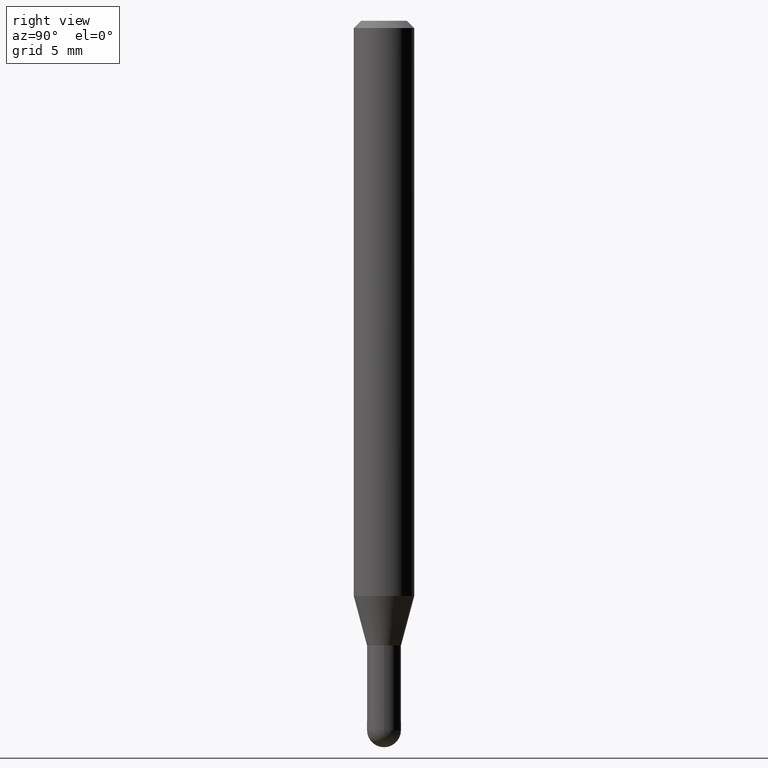
[diagram: clean part render]
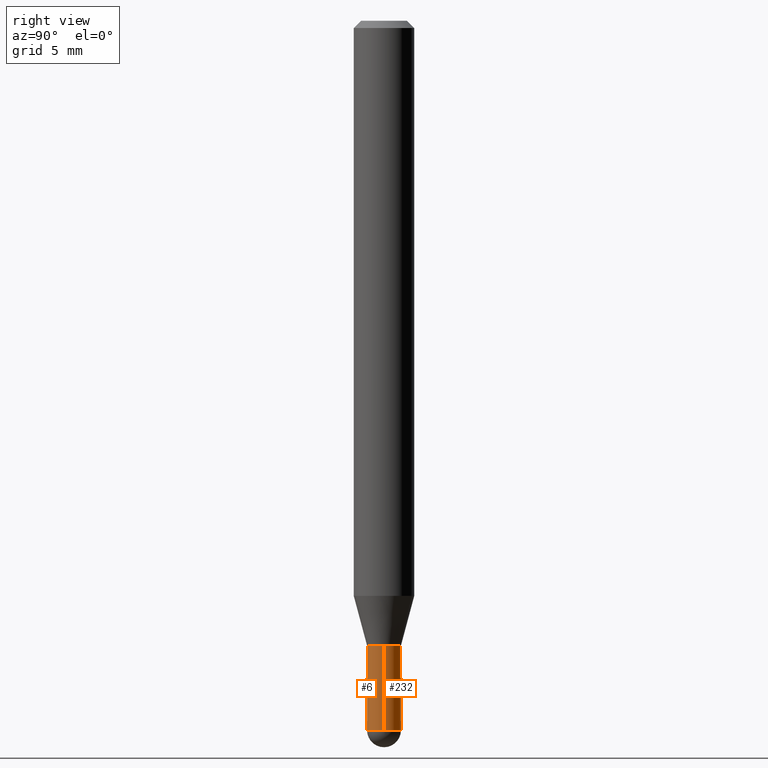
[diagram: same view with one multi-face feature highlighted, each face labeled with its STEP entity id]
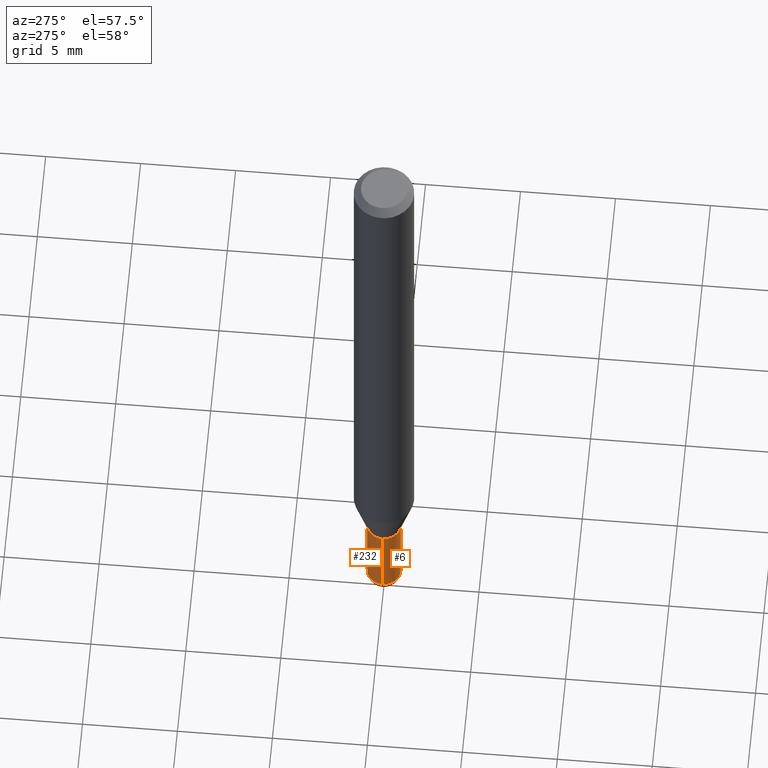
[diagram: same view with one multi-face feature highlighted, each face labeled with its STEP entity id]
A machine part, right view. The highlighted faces form ONE feature: a constant-radius fillet chain: 2 tangent blend faces with common blend radius 0.889 mm. The faces share edges in the B-rep.
A second angle (auxiliary view) of the same feature is appended — it is thin or edge-on in the first view.
Their STEP definitions:
[1] entity #6 (Cylinder):
#6 = ADVANCED_FACE ( 'NONE', ( #47 ), #305, .T. ) ;
#12 = EDGE_LOOP ( 'NONE', ( #110, #325, #220, #182, #302 ) ) ;
#26 = AXIS2_PLACEMENT_3D ( 'NONE', #471, #217, #377 ) ;
#28 = CARTESIAN_POINT ( 'NONE',  ( 0.03500000000000000333, -4.748414620826678245E-15, -1.290000000000000258 ) ) ;
#37 = CARTESIAN_POINT ( 'NONE',  ( 3.582611801061224486E-29, -5.115020161405207405E-15, -1.464999999999999858 ) ) ;
#47 = FACE_OUTER_BOUND ( 'NONE', #12, .T. ) ;
#58 = DIRECTION ( 'NONE',  ( -2.445468806185136597E-29, 3.491481338843145583E-15, 1.000000000000000000 ) ) ;
#59 = AXIS2_PLACEMENT_3D ( 'NONE', #37, #260, #230 ) ;
#65 = CARTESIAN_POINT ( 'NONE',  ( -0.03500000000000000333, -4.560825586740397161E-15, -1.464999999999999858 ) ) ;
#88 = VECTOR ( 'NONE', #449, 39.37007874015748143 ) ;
#98 = VERTEX_POINT ( 'NONE', #293 ) ;
#110 = ORIENTED_EDGE ( 'NONE', *, *, #373, .F. ) ;
#124 = DIRECTION ( 'NONE',  ( -2.445468806185136877E-29, 3.491481338843145188E-15, 1.000000000000000000 ) ) ;
#134 = LINE ( 'NONE', #287, #88 ) ;
#136 = AXIS2_PLACEMENT_3D ( 'NONE', #370, #58, #143 ) ;
#137 = VERTEX_POINT ( 'NONE', #65 ) ;
#143 = DIRECTION ( 'NONE',  ( 1.000000000000000000, -6.982962677686276966E-15, 0.000000000000000000 ) ) ;
#146 = CIRCLE ( 'NONE', #59, 0.03500000000000000333 ) ;
#151 = DIRECTION ( 'NONE',  ( -2.445468806185136597E-29, 3.491481338843145583E-15, 1.000000000000000000 ) ) ;
#154 = CARTESIAN_POINT ( 'NONE',  ( 0.03500000000000000333, -5.053919237975452413E-15, -1.464999999999999858 ) ) ;
#182 = ORIENTED_EDGE ( 'NONE', *, *, #464, .T. ) ;
#187 = VERTEX_POINT ( 'NONE', #28 ) ;
#191 = CARTESIAN_POINT ( 'NONE',  ( 0.03500000000000000333, -2.444036937190193250E-16, 1.706661871528577808E-30 ) ) ;
#196 = CIRCLE ( 'NONE', #136, 0.03500000000000000333 ) ;
#217 = DIRECTION ( 'NONE',  ( -2.445468806185136597E-29, 3.491481338843145583E-15, 1.000000000000000000 ) ) ;
#220 = ORIENTED_EDGE ( 'NONE', *, *, #387, .T. ) ;
#230 = DIRECTION ( 'NONE',  ( 1.000000000000000000, -6.982962677686276966E-15, 0.000000000000000000 ) ) ;
#240 = EDGE_CURVE ( 'NONE', #388, #187, #196, .T. ) ;
#251 = AXIS2_PLACEMENT_3D ( 'NONE', #466, #151, #303 ) ;
#260 = DIRECTION ( 'NONE',  ( -2.445468806185136597E-29, 3.491481338843145583E-15, 1.000000000000000000 ) ) ;
#287 = CARTESIAN_POINT ( 'NONE',  ( -0.03500000000000000333, 2.486899575160350887E-16, -1.721627281589217108E-30 ) ) ;
#293 = CARTESIAN_POINT ( 'NONE',  ( -2.444036937189835304E-16, -0.03500000000000512423, -1.464999999999999858 ) ) ;
#301 = CARTESIAN_POINT ( 'NONE',  ( -0.03500000000000000333, -4.560825586740397161E-15, -1.290000000000000258 ) ) ;
#302 = ORIENTED_EDGE ( 'NONE', *, *, #240, .F. ) ;
#303 = DIRECTION ( 'NONE',  ( 1.000000000000000000, -6.982962677686276966E-15, 0.000000000000000000 ) ) ;
#305 = CYLINDRICAL_SURFACE ( 'NONE', #26, 0.03500000000000000333 ) ;
#325 = ORIENTED_EDGE ( 'NONE', *, *, #487, .T. ) ;
#348 = LINE ( 'NONE', #191, #509 ) ;
#370 = CARTESIAN_POINT ( 'NONE',  ( 3.154654759978826367E-29, -4.504010927107658279E-15, -1.290000000000000258 ) ) ;
#373 = EDGE_CURVE ( 'NONE', #137, #388, #134, .T. ) ;
#377 = DIRECTION ( 'NONE',  ( 1.000000000000000000, -6.982962677686265922E-15, 4.876176775795936353E-29 ) ) ;
#387 = EDGE_CURVE ( 'NONE', #98, #411, #146, .T. ) ;
#388 = VERTEX_POINT ( 'NONE', #301 ) ;
#411 = VERTEX_POINT ( 'NONE', #154 ) ;
#449 = DIRECTION ( 'NONE',  ( -2.445468806185136877E-29, 3.491481338843145188E-15, 1.000000000000000000 ) ) ;
#464 = EDGE_CURVE ( 'NONE', #411, #187, #348, .T. ) ;
#466 = CARTESIAN_POINT ( 'NONE',  ( 3.582611801061224486E-29, -5.115020161405207405E-15, -1.464999999999999858 ) ) ;
#471 = CARTESIAN_POINT ( 'NONE',  ( 0.000000000000000000, 0.000000000000000000, 0.000000000000000000 ) ) ;
#483 = CIRCLE ( 'NONE', #251, 0.03500000000000000333 ) ;
#487 = EDGE_CURVE ( 'NONE', #137, #98, #483, .T. ) ;
#509 = VECTOR ( 'NONE', #124, 39.37007874015748143 ) ;
[2] entity #232 (Cylinder):
#28 = CARTESIAN_POINT ( 'NONE',  ( 0.03500000000000000333, -4.748414620826678245E-15, -1.290000000000000258 ) ) ;
#39 = CIRCLE ( 'NONE', #231, 0.03500000000000000333 ) ;
#65 = CARTESIAN_POINT ( 'NONE',  ( -0.03500000000000000333, -4.560825586740397161E-15, -1.464999999999999858 ) ) ;
#88 = VECTOR ( 'NONE', #449, 39.37007874015748143 ) ;
#99 = CARTESIAN_POINT ( 'NONE',  ( 2.486899575160709326E-16, 0.03499999999999489630, -1.464999999999999858 ) ) ;
#119 = DIRECTION ( 'NONE',  ( -2.445468806185136597E-29, 3.491481338843145583E-15, 1.000000000000000000 ) ) ;
#120 = EDGE_LOOP ( 'NONE', ( #444, #261, #404, #246, #243 ) ) ;
#124 = DIRECTION ( 'NONE',  ( -2.445468806185136877E-29, 3.491481338843145188E-15, 1.000000000000000000 ) ) ;
#128 = EDGE_CURVE ( 'NONE', #187, #388, #190, .T. ) ;
#134 = LINE ( 'NONE', #287, #88 ) ;
#137 = VERTEX_POINT ( 'NONE', #65 ) ;
#154 = CARTESIAN_POINT ( 'NONE',  ( 0.03500000000000000333, -5.053919237975452413E-15, -1.464999999999999858 ) ) ;
#184 = CARTESIAN_POINT ( 'NONE',  ( 3.582611801061224486E-29, -5.115020161405207405E-15, -1.464999999999999858 ) ) ;
#187 = VERTEX_POINT ( 'NONE', #28 ) ;
#190 = CIRCLE ( 'NONE', #484, 0.03500000000000000333 ) ;
#191 = CARTESIAN_POINT ( 'NONE',  ( 0.03500000000000000333, -2.444036937190193250E-16, 1.706661871528577808E-30 ) ) ;
#205 = CARTESIAN_POINT ( 'NONE',  ( 0.000000000000000000, 0.000000000000000000, 0.000000000000000000 ) ) ;
#227 = DIRECTION ( 'NONE',  ( -2.445468806185136597E-29, 3.491481338843145583E-15, 1.000000000000000000 ) ) ;
#231 = AXIS2_PLACEMENT_3D ( 'NONE', #184, #227, #342 ) ;
#232 = ADVANCED_FACE ( 'NONE', ( #495 ), #331, .T. ) ;
#243 = ORIENTED_EDGE ( 'NONE', *, *, #479, .T. ) ;
#246 = ORIENTED_EDGE ( 'NONE', *, *, #464, .F. ) ;
#261 = ORIENTED_EDGE ( 'NONE', *, *, #373, .T. ) ;
#266 = DIRECTION ( 'NONE',  ( 1.000000000000000000, -6.982962677686276966E-15, 0.000000000000000000 ) ) ;
#285 = AXIS2_PLACEMENT_3D ( 'NONE', #469, #119, #266 ) ;
#287 = CARTESIAN_POINT ( 'NONE',  ( -0.03500000000000000333, 2.486899575160350887E-16, -1.721627281589217108E-30 ) ) ;
#297 = AXIS2_PLACEMENT_3D ( 'NONE', #205, #375, #490 ) ;
#301 = CARTESIAN_POINT ( 'NONE',  ( -0.03500000000000000333, -4.560825586740397161E-15, -1.290000000000000258 ) ) ;
#319 = VERTEX_POINT ( 'NONE', #99 ) ;
#327 = DIRECTION ( 'NONE',  ( -2.445468806185136597E-29, 3.491481338843145583E-15, 1.000000000000000000 ) ) ;
#331 = CYLINDRICAL_SURFACE ( 'NONE', #297, 0.03500000000000000333 ) ;
#342 = DIRECTION ( 'NONE',  ( 1.000000000000000000, -6.982962677686276966E-15, 0.000000000000000000 ) ) ;
#348 = LINE ( 'NONE', #191, #509 ) ;
#373 = EDGE_CURVE ( 'NONE', #137, #388, #134, .T. ) ;
#375 = DIRECTION ( 'NONE',  ( -2.445468806185136597E-29, 3.491481338843145583E-15, 1.000000000000000000 ) ) ;
#380 = CARTESIAN_POINT ( 'NONE',  ( 3.154654759978826367E-29, -4.504010927107658279E-15, -1.290000000000000258 ) ) ;
#388 = VERTEX_POINT ( 'NONE', #301 ) ;
#403 = DIRECTION ( 'NONE',  ( 1.000000000000000000, -6.982962677686276966E-15, 0.000000000000000000 ) ) ;
#404 = ORIENTED_EDGE ( 'NONE', *, *, #128, .F. ) ;
#411 = VERTEX_POINT ( 'NONE', #154 ) ;
#444 = ORIENTED_EDGE ( 'NONE', *, *, #498, .T. ) ;
#449 = DIRECTION ( 'NONE',  ( -2.445468806185136877E-29, 3.491481338843145188E-15, 1.000000000000000000 ) ) ;
#457 = CIRCLE ( 'NONE', #285, 0.03500000000000000333 ) ;
#464 = EDGE_CURVE ( 'NONE', #411, #187, #348, .T. ) ;
#469 = CARTESIAN_POINT ( 'NONE',  ( 3.582611801061224486E-29, -5.115020161405207405E-15, -1.464999999999999858 ) ) ;
#479 = EDGE_CURVE ( 'NONE', #411, #319, #39, .T. ) ;
#484 = AXIS2_PLACEMENT_3D ( 'NONE', #380, #327, #403 ) ;
#490 = DIRECTION ( 'NONE',  ( 1.000000000000000000, -6.982962677686265922E-15, 4.876176775795936353E-29 ) ) ;
#495 = FACE_OUTER_BOUND ( 'NONE', #120, .T. ) ;
#498 = EDGE_CURVE ( 'NONE', #319, #137, #457, .T. ) ;
#509 = VECTOR ( 'NONE', #124, 39.37007874015748143 ) ;